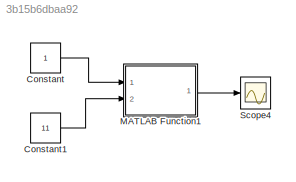
MODEL slx_3b15b6dbaa92
KIND model
BLOCK [Constant] Constant
BLOCK [Constant] Constant1
  Value = 11
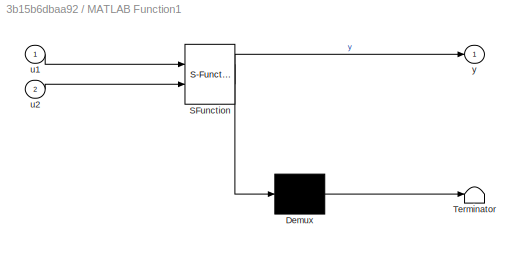
BLOCK [SubSystem] MATLAB Function1
  ErrorFcn = Stateflow.Translate.translate
  FunctionWithSeparateData = off
  MaskHideContents = off
  MinAlgLoopOccurrences = off
  Opaque = off
  PermitHierarchicalResolution = ExplicitOnly
  Ports = [2, 1]
  PropExecContextOutsideSubsystem = off
  RTWSystemCode = Auto
  RequestExecContextInheritance = off
  SFBlockType = MATLAB Function
  TreatAsAtomicUnit = on
BLOCK [Demux] MATLAB Function1/ Demux 
  Outputs = 1
  Ports = [1, 1]
BLOCK [S-Function] MATLAB Function1/ SFunction 
  EnableBusSupport = on
  FunctionName = sf_sfun
  PortCounts = [2 2]
  Ports = [2, 2]
  Tag = Stateflow S-Function TestDeriveMatlabFun 3
BLOCK [Terminator] MATLAB Function1/ Terminator 
BLOCK [Inport] MATLAB Function1/u1
  IconDisplay = Port number
BLOCK [Inport] MATLAB Function1/u2
  IconDisplay = Port number
  Port = 2
BLOCK [Outport] MATLAB Function1/y
  IconDisplay = Port number
BLOCK [Scope] Scope4
  DataFormat = StructureWithTime
  Floating = off
  NumInputPorts = 1
  Ports = [1]
  SampleTime = 0
  ShowLegends = off
  YMax = 0.75
  YMin = -2.25
LINE Constant1:1 -> MATLAB Function1:2
LINE Constant:1 -> MATLAB Function1:1
LINE MATLAB Function1:1 -> Scope4:1
